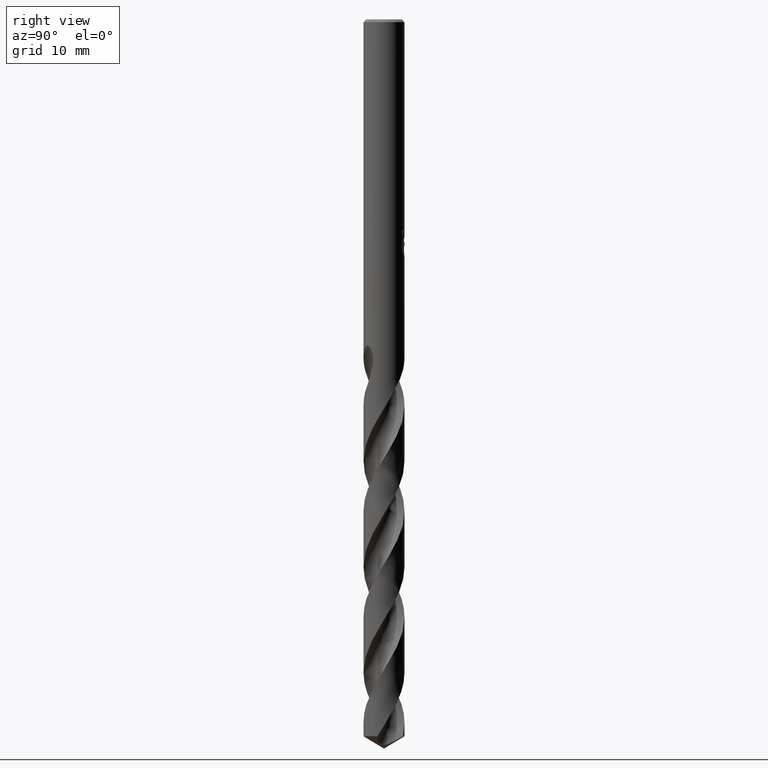
[diagram: clean part render]
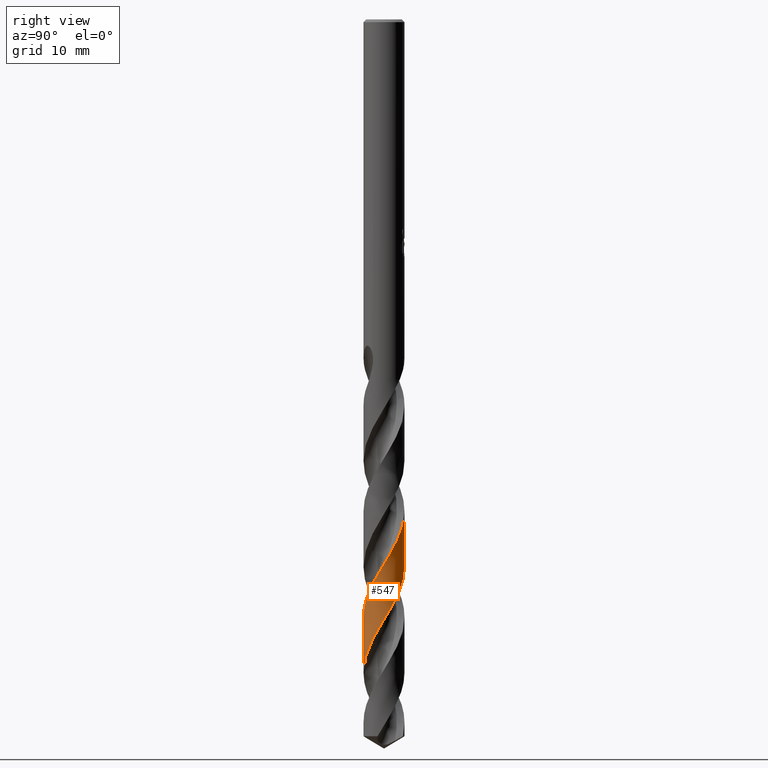
[diagram: same view with one face highlighted and labeled with its STEP entity id]
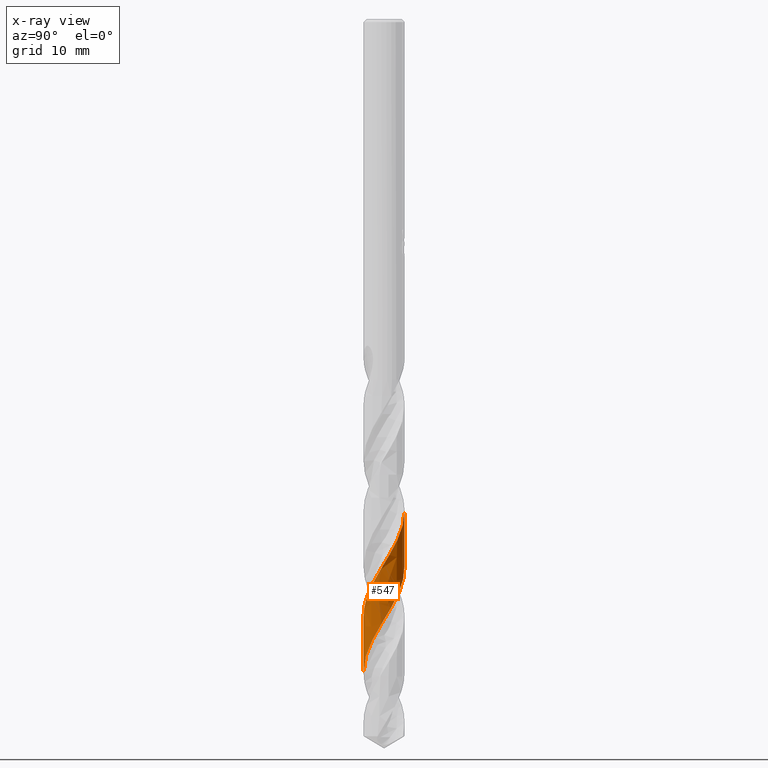
[diagram: x-ray of the same camera — body ghosted, the highlighted face saturated]
A machine part, right view. The second image highlights one B-rep face of the part: STEP entity #547.
The next image is the same camera in x-ray: the body ghosted, the highlighted face saturated — about 0% of this face is hidden behind the body in this view.
In plain terms, the highlighted conical surface has half-angle 0 deg.
Its self-contained STEP definition (entity closure, byte-faithful):
#345=EDGE_CURVE('',#615,#449,#851,.T.);
#449=VERTEX_POINT('',#968);
#457=VERTEX_POINT('',#977);
#543=EDGE_CURVE('',#615,#635,#1071,.T.);
#547=ADVANCED_FACE('',(#1075),#1076,.T.);
#583=EDGE_CURVE('',#457,#635,#1113,.T.);
#615=VERTEX_POINT('',#1146);
#635=VERTEX_POINT('',#1167);
#693=EDGE_CURVE('',#457,#449,#1229,.T.);
#851=LINE('',#1820,#1821);
#968=CARTESIAN_POINT('',(-2.2057457314449E-013,-2.24996653400407,-65.5467742340443));
#977=CARTESIAN_POINT('',(-2.9447654216318E-014,2.24993690590323,-53.9479464730402));
#1071=B_SPLINE_CURVE_WITH_KNOTS('',3,(#6180,#6181,#6182,#6183,#6184,#6185,#6186,#6187,#6188,#6189,#6190,#6191,#6192,#6193,#6194,#6195,#6196,#6197,#6198,#6199,#6200,#6201,#6202,#6203,#6204,#6205,#6206,#6207,#6208,#6209,#6210,#6211,#6212,#6213,#6214,#6215,#6216,#6217,#6218,#6219,#6220,#6221,#6222,#6223,#6224,#6225,#6226,#6227,#6228,#6229,#6230,#6231,#6232,#6233,#6234,#6235,#6236,#6237,#6238,#6239,#6240,#6241,#6242,#6243,#6244,#6245,#6246,#6247,#6248,#6249,#6250,#6251,#6252,#6253,#6254,#6255,#6256,#6257,#6258,#6259,#6260,#6261,#6262,#6263,#6264,#6265,#6266,#6267,#6268,#6269,#6270,#6271,#6272,#6273,#6274,#6275,#6276,#6277,#6278,#6279,#6280,#6281,#6282,#6283,#6284,#6285,#6286,#6287,#6288,#6289,#6290,#6291,#6292,#6293,#6294,#6295,#6296,#6297,#6298,#6299,#6300,#6301,#6302,#6303,#6304,#6305,#6306,#6307,#6308,#6309,#6310,#6311,#6312,#6313,#6314,#6315,#6316,#6317,#6318,#6319,#6320,#6321,#6322,#6323),.UNSPECIFIED.,.F.,.F.,(4,2,2,2,2,2,2,2,2,2,2,2,2,2,2,2,2,2,2,2,2,2,2,2,2,2,2,2,2,2,2,2,2,2,2,2,2,2,2,2,2,2,2,2,2,2,2,2,2,2,2,2,2,2,2,2,2,2,2,2,2,2,2,2,2,2,2,2,2,2,2,4),(0.0,0.702120681021277,1.07274663009122,1.80338763470696,2.60304496838478,3.28402904207326,4.08200615313659,4.77401504416212,5.50854097753346,6.23454204389761,6.96847339897338,7.69617758368244,8.42969971275998,9.15903457190725,9.89223045695538,10.6230376962887,11.3559151084156,12.0882724824586,12.820956864158,13.5547987661257,14.2874088135748,15.0226374517875,15.7552240804212,16.4917979793885,17.2243626389819,17.9623718526773,18.6699265110403,19.4104021495991,20.0624604085578,20.434632020391,21.1031794175738,21.841025969625,22.5702179285365,23.3074546769585,24.038473608882,24.7752740594691,25.5079513731988,26.3083518426672,27.0347456765723,27.8362544568986,28.5556564429973,29.2938008727282,30.0226230927258,30.7602089794187,31.4908320360858,32.2279706915762,32.944147603191,33.7444321630175,34.4410511543111,35.1776950787822,35.9123330306739,36.6487130494387,37.3848857416136,38.1212135879854,38.8587665530458,39.5947558382061,40.3334773225328,40.9775383264977,41.2755354404517,41.795759390669,42.4960170008308,43.2544659381512,43.5460203686117,44.5763193441655,44.9618871318318,45.4959655954231,45.6304983131512,45.7487395348211,45.8959323782895,46.1857774355871,46.5643830689777,47.4653220340241),.UNSPECIFIED.);
#1075=FACE_OUTER_BOUND('',#6327,.T.);
#1076=CONICAL_SURFACE('',#6328,2.24995,2.55440475941274E-006);
#1113=LINE('',#6604,#6605);
#1146=CARTESIAN_POINT('',(1.12399953532747E-014,-2.24998214770868,-71.6592372482266));
#1167=CARTESIAN_POINT('',(3.19290175156959E-015,2.24995252058692,-60.0607927745969));
#1229=B_SPLINE_CURVE_WITH_KNOTS('',3,(#7267,#7268,#7269,#7270,#7271,#7272,#7273,#7274,#7275,#7276,#7277,#7278,#7279,#7280,#7281,#7282,#7283,#7284,#7285,#7286,#7287,#7288,#7289,#7290,#7291,#7292,#7293,#7294,#7295,#7296,#7297,#7298,#7299,#7300,#7301,#7302,#7303,#7304,#7305,#7306,#7307,#7308,#7309,#7310,#7311,#7312,#7313,#7314,#7315,#7316,#7317,#7318,#7319,#7320,#7321,#7322,#7323,#7324,#7325,#7326,#7327,#7328,#7329,#7330,#7331,#7332,#7333,#7334,#7335,#7336,#7337,#7338,#7339,#7340,#7341,#7342,#7343,#7344,#7345,#7346,#7347,#7348,#7349,#7350,#7351,#7352,#7353,#7354,#7355,#7356,#7357,#7358,#7359,#7360,#7361,#7362,#7363,#7364,#7365,#7366,#7367,#7368,#7369,#7370,#7371,#7372,#7373,#7374,#7375,#7376,#7377,#7378,#7379,#7380,#7381,#7382,#7383,#7384,#7385,#7386,#7387,#7388,#7389,#7390,#7391,#7392,#7393,#7394,#7395,#7396,#7397,#7398,#7399,#7400,#7401,#7402,#7403,#7404,#7405,#7406,#7407,#7408,#7409,#7410,#7411,#7412,#7413,#7414,#7415,#7416,#7417,#7418,#7419,#7420,#7421,#7422,#7423,#7424,#7425,#7426,#7427,#7428,#7429,#7430,#7431,#7432,#7433,#7434,#7435,#7436,#7437,#7438,#7439,#7440,#7441,#7442,#7443,#7444,#7445,#7446,#7447,#7448,#7449,#7450),.UNSPECIFIED.,.F.,.F.,(4,2,2,2,2,2,2,2,2,2,2,2,2,2,2,2,2,2,2,2,2,2,2,2,2,2,2,2,2,2,2,2,2,2,2,2,2,2,2,2,2,2,2,2,2,2,2,2,2,2,2,2,2,2,2,2,2,2,2,2,2,2,2,2,2,2,2,2,2,2,2,2,2,2,2,2,2,2,2,2,2,2,2,2,2,2,2,2,2,2,2,4),(0.0,0.113528017460406,0.182438753364415,0.191622564231511,0.196536742408639,0.199201706864922,0.201555537278635,0.203670515177977,0.20558770378618,0.207339031908972,0.208949760172241,0.21044017537809,0.211826786946294,0.213123191282054,0.214340703856623,0.487283480446852,0.551391172882907,0.586436027047644,0.615827404868498,0.650628006318163,0.713643657035673,0.800831644275865,1.1523904375513,1.38130031380908,1.81812081185199,2.7110090045117,3.07568607067651,4.17702550485879,4.60158470303633,5.54816450617054,5.98303817381051,6.72648809587862,7.50853843124404,8.40126048299548,8.87427751077797,9.56273513466763,9.95627646518073,10.3420030845976,11.0629852147044,11.8441502774595,12.7399651878436,13.2051009840837,13.8914977375756,14.2849812892296,14.6731421455716,15.3945071397386,16.1754132122103,17.075273318402,17.534336794694,18.2181364279377,18.6115592570982,19.0021199676672,19.7208395783507,20.5019356059404,21.3965248198796,21.8628064305814,22.5476886395101,22.9409527167423,23.3299532136154,24.0451697308872,24.8264899824703,25.7124499226587,26.1907871891486,26.8763081672405,27.2694397976215,27.6576756201549,28.3752416365909,29.1558975664194,30.043921419808,30.5181872278421,31.2035303482447,31.5965495535041,31.9846171514262,32.7046870302506,33.484721663296,34.381092694776,34.8428327176749,35.5259617804625,35.9189114051995,36.3089077852231,37.0274473426201,37.8075046738142,38.7014142492034,39.1659310146029,39.8504547875752,40.1493883899726,40.6090807948256,41.3623313471776,42.1803806557996,42.7924906430538,43.7173942660926,44.6416774771327),.UNSPECIFIED.);
#1820=CARTESIAN_POINT('',(2.75526277217447E-016,-2.24995,-59.074031803594));
#1821=VECTOR('',#8106,1.0);
#6180=CARTESIAN_POINT('',(-2.13435979439722,0.712045130634748,-78.648063607188));
#6181=CARTESIAN_POINT('',(-2.17271062859822,0.597086645796059,-78.4478422593322));
#6182=CARTESIAN_POINT('',(-2.20181655529884,0.478909642896238,-78.2487357693072));
#6183=CARTESIAN_POINT('',(-2.23149380420802,0.295070491786576,-77.9435538195333));
#6184=CARTESIAN_POINT('',(-2.23901528478628,0.231162084316197,-77.838262165326));
#6185=CARTESIAN_POINT('',(-2.25319887063648,0.0406261575153213,-77.5249070278641));
#6186=CARTESIAN_POINT('',(-2.25191531909676,-0.086340657561007,-77.3163479627904));
#6187=CARTESIAN_POINT('',(-2.22680532991229,-0.350847741658506,-76.8809401806748));
#6188=CARTESIAN_POINT('',(-2.20092639812897,-0.487464924990646,-76.6547613553453));
#6189=CARTESIAN_POINT('',(-2.13010393970114,-0.734213518765896,-76.2333186592188));
#6190=CARTESIAN_POINT('',(-2.08865036134144,-0.844976948812925,-76.0386529608023));
#6191=CARTESIAN_POINT('',(-1.98000306874429,-1.07761040247704,-75.6176099758222));
#6192=CARTESIAN_POINT('',(-1.90993310033129,-1.19740528154598,-75.3918426831561));
#6193=CARTESIAN_POINT('',(-1.7594524942498,-1.40754918874282,-74.9676105534453));
#6194=CARTESIAN_POINT('',(-1.68186410191084,-1.49941070602661,-74.7697702190495));
#6195=CARTESIAN_POINT('',(-1.50736696190419,-1.67528173355542,-74.3635489515659));
#6196=CARTESIAN_POINT('',(-1.41000373798577,-1.75800934138317,-74.1554954866969));
#6197=CARTESIAN_POINT('',(-1.20355892247196,-1.90519639728094,-73.7395846924345));
#6198=CARTESIAN_POINT('',(-1.09504458997976,-1.96957151004027,-73.5319966067608));
#6199=CARTESIAN_POINT('',(-0.866927448663044,-2.08017204056303,-73.1162475782124));
#6200=CARTESIAN_POINT('',(-0.747746028447997,-2.12592292945814,-72.9083615985969));
#6201=CARTESIAN_POINT('',(-0.503965446432093,-2.19645443468744,-72.4921698896535));
#6202=CARTESIAN_POINT('',(-0.379965555769005,-2.22126377653175,-72.2841159667667));
#6203=CARTESIAN_POINT('',(-0.127918983333547,-2.24994994470175,-71.8680379984815));
#6204=CARTESIAN_POINT('',(-0.000398393961568128,-2.25358377574653,-71.6602896566709));
#6205=CARTESIAN_POINT('',(0.253189139650167,-2.23927350017068,-71.243833016311));
#6206=CARTESIAN_POINT('',(0.378660871875223,-2.22149669735423,-71.0353461260022));
#6207=CARTESIAN_POINT('',(0.626065458709788,-2.16486464796892,-70.6189798913639));
#6208=CARTESIAN_POINT('',(0.747478690634122,-2.12600147959507,-70.4113687745722));
#6209=CARTESIAN_POINT('',(0.982101002287073,-2.02829340202483,-69.9947092680201));
#6210=CARTESIAN_POINT('',(1.09475435921651,-1.96976617069505,-69.7858588543095));
#6211=CARTESIAN_POINT('',(1.30937203148865,-1.83414752100473,-69.3692864914352));
#6212=CARTESIAN_POINT('',(1.41091262676295,-1.75724104106406,-69.161829442149));
#6213=CARTESIAN_POINT('',(1.59990774412788,-1.58708474322601,-68.7449856251415));
#6214=CARTESIAN_POINT('',(1.68688532687388,-1.49429563233024,-68.5357829197184));
#6215=CARTESIAN_POINT('',(1.84430963742927,-1.29500313128231,-68.1189891212932));
#6216=CARTESIAN_POINT('',(1.91448839264255,-1.18881085273019,-67.9116700834649));
#6217=CARTESIAN_POINT('',(2.03630791303403,-0.965418790544822,-67.4946630100714));
#6218=CARTESIAN_POINT('',(2.08759593173016,-0.84880795096505,-67.2851519068469));
#6219=CARTESIAN_POINT('',(2.16985425738663,-0.60844490670405,-66.8681607001683));
#6220=CARTESIAN_POINT('',(2.20073518520968,-0.485046331689476,-66.6609651591551));
#6221=CARTESIAN_POINT('',(2.24142259185806,-0.233753880882469,-66.2438232846686));
#6222=CARTESIAN_POINT('',(2.25104463119536,-0.106545228294813,-66.0340517111265));
#6223=CARTESIAN_POINT('',(2.24870318603001,0.147535736074295,-65.6169136031321));
#6224=CARTESIAN_POINT('',(2.23681569810947,0.274093708819379,-65.4098459077986));
#6225=CARTESIAN_POINT('',(2.19164884780061,0.524707876001582,-64.9926024998328));
#6226=CARTESIAN_POINT('',(2.15838472658802,0.648031991750869,-64.7826034366051));
#6227=CARTESIAN_POINT('',(2.07167559835062,0.886876154487342,-64.3653702522208));
#6228=CARTESIAN_POINT('',(2.01842854197389,1.00218838138316,-64.1584494740488));
#6229=CARTESIAN_POINT('',(1.89247765367886,1.22360087359562,-63.7411231830724));
#6230=CARTESIAN_POINT('',(1.81999968226538,1.3289805045394,-63.5309042409072));
#6231=CARTESIAN_POINT('',(1.66151860590243,1.52204625788609,-63.1206886654241));
#6232=CARTESIAN_POINT('',(1.57631040282655,1.61014492351405,-62.9209200947215));
#6233=CARTESIAN_POINT('',(1.38792487608751,1.77550259699357,-62.5103568879049));
#6234=CARTESIAN_POINT('',(1.28466073911726,1.85156213113871,-62.2997124297806));
#6235=CARTESIAN_POINT('',(1.07980407801645,1.97711624550727,-61.9049411875486));
#6236=CARTESIAN_POINT('',(0.979496147664103,2.02869717903597,-61.7208942009025));
#6237=CARTESIAN_POINT('',(0.816309018802666,2.09763803879937,-61.430840472159));
#6238=CARTESIAN_POINT('',(0.756025236583418,2.12010691572805,-61.3255551502634));
#6239=CARTESIAN_POINT('',(0.585174544221019,2.17558823523492,-61.0306064066594));
#6240=CARTESIAN_POINT('',(0.472787003407375,2.20275459748035,-60.8403485272733));
#6241=CARTESIAN_POINT('',(0.232743754785717,2.24151609127974,-60.4416629860171));
#6242=CARTESIAN_POINT('',(0.105340338306851,2.25109990949599,-60.2336114218722));
#6243=CARTESIAN_POINT('',(-0.14817372796478,2.24860133639652,-59.8177246145395));
#6244=CARTESIAN_POINT('',(-0.273773335491415,2.23678738948327,-59.6101601292424));
#6245=CARTESIAN_POINT('',(-0.52326877752256,2.19196423000601,-59.1944384166679));
#6246=CARTESIAN_POINT('',(-0.646545470791357,2.15881679396818,-58.9865547046127));
#6247=CARTESIAN_POINT('',(-0.885145059906551,2.07237827280492,-58.5703578617935));
#6248=CARTESIAN_POINT('',(-0.999999481080918,2.01946224132729,-58.3622950797145));
#6249=CARTESIAN_POINT('',(-1.22065147838891,1.89432978621778,-57.9462192226508));
#6250=CARTESIAN_POINT('',(-1.32588247536217,1.82222761102995,-57.7384812937048));
#6251=CARTESIAN_POINT('',(-1.52248486867655,1.66142464070998,-57.3220234267058));
#6252=CARTESIAN_POINT('',(-1.61347118313126,1.57320810638233,-57.1135243733183));
#6253=CARTESIAN_POINT('',(-1.78741989191322,1.37349796179347,-56.6790393942621));
#6254=CARTESIAN_POINT('',(-1.8684228161555,1.26109366391751,-56.4536275980697));
#6255=CARTESIAN_POINT('',(-2.00228308927135,1.03385051945181,-56.020994301539));
#6256=CARTESIAN_POINT('',(-2.05678061597598,0.920675700529555,-55.8143225736173));
#6257=CARTESIAN_POINT('',(-2.15105184381997,0.674082782366186,-55.3813670169602));
#6258=CARTESIAN_POINT('',(-2.18844238861629,0.540467049635112,-55.1556408901845));
#6259=CARTESIAN_POINT('',(-2.23563536960615,0.28211847222798,-54.724639640122));
#6260=CARTESIAN_POINT('',(-2.24780579593816,0.15828654053309,-54.5199305312201));
#6261=CARTESIAN_POINT('',(-2.2516064300786,-0.0936240294488961,-54.1068501619269));
#6262=CARTESIAN_POINT('',(-2.24267477851613,-0.221105405363797,-53.8987462364778));
#6263=CARTESIAN_POINT('',(-2.20357557025293,-0.471507712992128,-53.4829733475429));
#6264=CARTESIAN_POINT('',(-2.17376211775793,-0.593998694353866,-53.2755614153114));
#6265=CARTESIAN_POINT('',(-2.09339092755824,-0.834367867354962,-52.8599363042531));
#6266=CARTESIAN_POINT('',(-2.04276990680807,-0.951596979236569,-52.6519975469926));
#6267=CARTESIAN_POINT('',(-1.92280234866902,-1.17514543708405,-52.2358883126551));
#6268=CARTESIAN_POINT('',(-1.85390717512902,-1.28107824215044,-52.0279811665926));
#6269=CARTESIAN_POINT('',(-1.69825785115445,-1.48132856654171,-51.6119950020648));
#6270=CARTESIAN_POINT('',(-1.61169163426833,-1.57507560369701,-51.4041969553388));
#6271=CARTESIAN_POINT('',(-1.42628653665004,-1.74447853093345,-50.9923748335573));
#6272=CARTESIAN_POINT('',(-1.32829429003803,-1.82019602172326,-50.7886016862918));
#6273=CARTESIAN_POINT('',(-1.10857271229722,-1.96273926832943,-50.358886256084));
#6274=CARTESIAN_POINT('',(-0.985939390824722,-2.02711659323071,-50.1335410337922));
#6275=CARTESIAN_POINT('',(-0.746940854318632,-2.1257289179159,-49.7094585952203));
#6276=CARTESIAN_POINT('',(-0.632328529709323,-2.16259013160117,-49.5113029463225));
#6277=CARTESIAN_POINT('',(-0.391407973410714,-2.2192659068354,-49.1052483650218));
#6278=CARTESIAN_POINT('',(-0.265317177674722,-2.23784715347634,-48.8976735427168));
#6279=CARTESIAN_POINT('',(-0.0116246813066153,-2.25346956537466,-48.4809838131348));
#6280=CARTESIAN_POINT('',(0.115334548012754,-2.25053918012005,-48.272064652228));
#6281=CARTESIAN_POINT('',(0.367766164191148,-2.22329671003538,-47.8554459854239));
#6282=CARTESIAN_POINT('',(0.492783726941614,-2.19897342127406,-47.6480139854614));
#6283=CARTESIAN_POINT('',(0.737429398755259,-2.12943745895583,-47.2311377346605));
#6284=CARTESIAN_POINT('',(0.856419348530864,-2.08442040506636,-47.0218799378508));
#6285=CARTESIAN_POINT('',(1.08555159960501,-1.97480182718253,-46.605011950336));
#6286=CARTESIAN_POINT('',(1.19532506468813,-1.91036340902812,-46.3976768335243));
#6287=CARTESIAN_POINT('',(1.40308316491172,-1.76343330649609,-45.9806263333866));
#6288=CARTESIAN_POINT('',(1.50049167899625,-1.68131294589452,-45.7710778261652));
#6289=CARTESIAN_POINT('',(1.68017049529191,-1.50174642965776,-45.3541215929563));
#6290=CARTESIAN_POINT('',(1.76221165598175,-1.40458501255523,-45.1470029107605));
#6291=CARTESIAN_POINT('',(1.90937510071004,-1.1969339663782,-44.7299674259028));
#6292=CARTESIAN_POINT('',(1.97401833246517,-1.08698819268343,-44.5202430859795));
#6293=CARTESIAN_POINT('',(2.07692188991868,-0.872238931841132,-44.1291964072743));
#6294=CARTESIAN_POINT('',(2.11743132146128,-0.768721771883901,-43.947795729565));
#6295=CARTESIAN_POINT('',(2.16529135589879,-0.613396054757867,-43.6816009204317));
#6296=CARTESIAN_POINT('',(2.17873035643442,-0.563796246731488,-43.5974464901586));
#6297=CARTESIAN_POINT('',(2.21091823086732,-0.426574293025015,-43.3661099296122));
#6298=CARTESIAN_POINT('',(2.22614196989529,-0.338259129651485,-43.2185342829461));
#6299=CARTESIAN_POINT('',(2.24943063773501,-0.129261095447972,-42.8734545280575));
#6300=CARTESIAN_POINT('',(2.25313117570096,-0.00842098271250032,-42.6765379294568));
#6301=CARTESIAN_POINT('',(2.24058530404616,0.242834136103357,-42.2643203460375));
#6302=CARTESIAN_POINT('',(2.22266808020727,0.37246175887967,-42.0486193816645));
#6303=CARTESIAN_POINT('',(2.18273120882726,0.547957990497729,-41.7524872197624));
#6304=CARTESIAN_POINT('',(2.1699948237718,0.596422423087943,-41.6703501243924));
#6305=CARTESIAN_POINT('',(2.10476408354637,0.814577633412873,-41.298230837221));
#6306=CARTESIAN_POINT('',(2.03514139553577,0.974187080141793,-41.0197294999639));
#6307=CARTESIAN_POINT('',(1.91897061578003,1.17628418444075,-40.6349465552418));
#6308=CARTESIAN_POINT('',(1.88552161848714,1.22908611123988,-40.5300750749876));
#6309=CARTESIAN_POINT('',(1.80208579267334,1.34974198516969,-40.2772555104342));
#6310=CARTESIAN_POINT('',(1.76465844020216,1.39612073664051,-40.1679618408801));
#6311=CARTESIAN_POINT('',(1.73823977979578,1.4285132288179,-40.0940737778944));
#6312=CARTESIAN_POINT('',(1.73281389714623,1.43509144076389,-40.0792773413718));
#6313=CARTESIAN_POINT('',(1.72240244211133,1.44756483129052,-40.0516000829713));
#6314=CARTESIAN_POINT('',(1.71744497502125,1.45344402222822,-40.0387092174586));
#6315=CARTESIAN_POINT('',(1.70611301515847,1.46674064056531,-40.00988995919));
#6316=CARTESIAN_POINT('',(1.69969164091072,1.47417888241801,-39.9939979480235));
#6317=CARTESIAN_POINT('',(1.68020043851546,1.49645144340101,-39.9470618032342));
#6318=CARTESIAN_POINT('',(1.66673642139678,1.51144721926407,-39.9163023987637));
#6319=CARTESIAN_POINT('',(1.63435440443745,1.54650259771604,-39.8461247882086));
#6320=CARTESIAN_POINT('',(1.61507643764334,1.56665537488797,-39.8070426487802));
#6321=CARTESIAN_POINT('',(1.54650240947543,1.6355634254914,-39.6768985173223));
#6322=CARTESIAN_POINT('',(1.49303389441334,1.68488195948245,-39.5895531721765));
#6323=CARTESIAN_POINT('',(1.43370499056795,1.73393773460644,-39.505));
#6327=EDGE_LOOP('',(#8370,#8371,#8372,#8373));
#6328=AXIS2_PLACEMENT_3D('',#8374,#8375,#8376);
#6604=CARTESIAN_POINT('',(-2.75534335939084E-016,2.24995,-59.074031803594));
#6605=VECTOR('',#8387,1.0);
#7267=CARTESIAN_POINT('',(1.56385330917524,-1.6175329656156,-39.505));
#7268=CARTESIAN_POINT('',(1.5503970481384,-1.63054278230679,-39.5378898399132));
#7269=CARTESIAN_POINT('',(1.53672818517695,-1.64343388963044,-39.5708297111496));
#7270=CARTESIAN_POINT('',(1.51435674048831,-1.66400326438699,-39.6237126920927));
#7271=CARTESIAN_POINT('',(1.50582685652638,-1.6717269546763,-39.6436461860297));
#7272=CARTESIAN_POINT('',(1.49603930161219,-1.68045253026119,-39.6662307811379));
#7273=CARTESIAN_POINT('',(1.49488661829445,-1.68147802033185,-39.6688861258655));
#7274=CARTESIAN_POINT('',(1.49311445403358,-1.68305136807855,-39.6729616237211));
#7275=CARTESIAN_POINT('',(1.49249623612319,-1.68359962068541,-39.6743820732725));
#7276=CARTESIAN_POINT('',(1.49154198624203,-1.68444493640608,-39.6765726172993));
#7277=CARTESIAN_POINT('',(1.4912063095689,-1.68474211433039,-39.6773428062595));
#7278=CARTESIAN_POINT('',(1.49057386971685,-1.68530168245255,-39.6787931838171));
#7279=CARTESIAN_POINT('',(1.49027713989246,-1.68556408249207,-39.6794733794559));
#7280=CARTESIAN_POINT('',(1.48971357264977,-1.68606218329646,-39.6807646842825));
#7281=CARTESIAN_POINT('',(1.4894467580485,-1.68629789079861,-39.6813757983888));
#7282=CARTESIAN_POINT('',(1.4889379039593,-1.68674720409231,-39.6825408236517));
#7283=CARTESIAN_POINT('',(1.48869588163643,-1.68696081483159,-39.6830947383113));
#7284=CARTESIAN_POINT('',(1.48823262877782,-1.68736950794652,-39.6841546035287));
#7285=CARTESIAN_POINT('',(1.48801141121194,-1.68756459422001,-39.6846605571127));
#7286=CARTESIAN_POINT('',(1.48758661334866,-1.6879390643921,-39.6856318086303));
#7287=CARTESIAN_POINT('',(1.48738304328774,-1.68811845118589,-39.6860971085939));
#7288=CARTESIAN_POINT('',(1.48699100476871,-1.68846379118365,-39.6869929216704));
#7289=CARTESIAN_POINT('',(1.48680254433047,-1.68862974673159,-39.6874234365547));
#7290=CARTESIAN_POINT('',(1.48643865985359,-1.68895006999599,-39.68825445501));
#7291=CARTESIAN_POINT('',(1.48626324215804,-1.68910443966032,-39.6886549601969));
#7292=CARTESIAN_POINT('',(1.48592374108727,-1.68940311079873,-39.6894298917893));
#7293=CARTESIAN_POINT('',(1.48575966293531,-1.68954741378204,-39.6898043193334));
#7294=CARTESIAN_POINT('',(1.48544142342223,-1.68982721593507,-39.6905303681776));
#7295=CARTESIAN_POINT('',(1.48528726639198,-1.68996271629952,-39.6908819903085));
#7296=CARTESIAN_POINT('',(1.45056710667254,-1.72047248935684,-39.7700583650363));
#7297=CARTESIAN_POINT('',(1.4153131241976,-1.74962932403451,-39.8463646752706));
#7298=CARTESIAN_POINT('',(1.36890145286255,-1.78557794048998,-39.9420757284251));
#7299=CARTESIAN_POINT('',(1.36000072700195,-1.79236704033454,-39.9602350081832));
#7300=CARTESIAN_POINT('',(1.3461023808626,-1.80280385541481,-39.9883174450708));
#7301=CARTESIAN_POINT('',(1.34116873236645,-1.8064772690177,-39.9982339774085));
#7302=CARTESIAN_POINT('',(1.33205516221206,-1.81320481145785,-40.0164630930154));
#7303=CARTESIAN_POINT('',(1.32788384369708,-1.81626191481278,-40.0247727591527));
#7304=CARTESIAN_POINT('',(1.31874062300008,-1.82291442399025,-40.0429183386439));
#7305=CARTESIAN_POINT('',(1.313764997302,-1.82650365698531,-40.0527490568899));
#7306=CARTESIAN_POINT('',(1.29972464906088,-1.83654462934524,-40.0803787851298));
#7307=CARTESIAN_POINT('',(1.29062532429671,-1.84295067494073,-40.098156207644));
#7308=CARTESIAN_POINT('',(1.26880600889117,-1.85807053782949,-40.1405470380901));
#7309=CARTESIAN_POINT('',(1.25619804619373,-1.86662062643355,-40.1648857710026));
#7310=CARTESIAN_POINT('',(1.19008571682157,-1.91044351277176,-40.2922642332554));
#7311=CARTESIAN_POINT('',(1.13598830676874,-1.94306986909211,-40.3951132569567));
#7312=CARTESIAN_POINT('',(1.04521423106528,-1.99280091951243,-40.5646421272873));
#7313=CARTESIAN_POINT('',(1.00893951266621,-2.01140764632759,-40.6316238696884));
#7314=CARTESIAN_POINT('',(0.902190276778757,-2.06255922994999,-40.8262957633626));
#7315=CARTESIAN_POINT('',(0.830435947303583,-2.09248173639619,-40.9540967925599));
#7316=CARTESIAN_POINT('',(0.60771877975256,-2.1720894604017,-41.3429266466163));
#7317=CARTESIAN_POINT('',(0.45284121115987,-2.20959695337448,-41.6021863700075));
#7318=CARTESIAN_POINT('',(0.230710919540276,-2.23898923228049,-41.9695277927869));
#7319=CARTESIAN_POINT('',(0.166012009368767,-2.24471115307034,-42.0760409579675));
#7320=CARTESIAN_POINT('',(-0.094516725698895,-2.25644313410496,-42.504507467452));
#7321=CARTESIAN_POINT('',(-0.29073476487951,-2.23965937734036,-42.8254229953383));
#7322=CARTESIAN_POINT('',(-0.556309238528833,-2.18136117185709,-43.2711823051515));
#7323=CARTESIAN_POINT('',(-0.629308824419347,-2.16143045867221,-43.3950481964808));
#7324=CARTESIAN_POINT('',(-0.861327341847977,-2.08533706054375,-43.795736286093));
#7325=CARTESIAN_POINT('',(-1.01513447184223,-2.0149553561241,-44.0716581816385));
#7326=CARTESIAN_POINT('',(-1.2260448526203,-1.88810062100017,-44.475318546462));
#7327=CARTESIAN_POINT('',(-1.29030484597677,-1.84478096142814,-44.6022371960533));
#7328=CARTESIAN_POINT('',(-1.45798118106234,-1.71869834998052,-44.9466598303753));
#7329=CARTESIAN_POINT('',(-1.55657934278272,-1.62994316505966,-45.1637437222689));
#7330=CARTESIAN_POINT('',(-1.7417370251641,-1.43104149858385,-45.6095916496253));
#7331=CARTESIAN_POINT('',(-1.82695874941443,-1.32050584582177,-45.8373299768346));
#7332=CARTESIAN_POINT('',(-1.98638543765065,-1.06848915515937,-46.3269065543102));
#7333=CARTESIAN_POINT('',(-2.05692631477457,-0.92546889552971,-46.5872818486249));
#7334=CARTESIAN_POINT('',(-2.1408834473912,-0.697035943173624,-46.9864245236589));
#7335=CARTESIAN_POINT('',(-2.16548251255545,-0.616376425240639,-47.1244528841706));
#7336=CARTESIAN_POINT('',(-2.21462858773798,-0.415445909559788,-47.4640023104193));
#7337=CARTESIAN_POINT('',(-2.23398068908008,-0.294139334416599,-47.665107719482));
#7338=CARTESIAN_POINT('',(-2.24870450687315,-0.101937348800821,-47.9814032997064));
#7339=CARTESIAN_POINT('',(-2.25079035319135,-0.0318036108997222,-48.0963515805248));
#7340=CARTESIAN_POINT('',(-2.24842489974545,0.107066896671128,-48.324113538776));
#7341=CARTESIAN_POINT('',(-2.24410482378041,0.175687825314579,-48.4367497404572));
#7342=CARTESIAN_POINT('',(-2.22273013109813,0.371641531426045,-48.7603285373179));
#7343=CARTESIAN_POINT('',(-2.19789776357127,0.497905360777315,-48.9709123539256));
#7344=CARTESIAN_POINT('',(-2.1239736277119,0.755166172997556,-49.4100610421548));
#7345=CARTESIAN_POINT('',(-2.07321020468015,0.885055646922275,-49.6376292084415));
#7346=CARTESIAN_POINT('',(-1.93921137395946,1.15199306806451,-50.1280031200599));
#7347=CARTESIAN_POINT('',(-1.85263418074883,1.28663140755332,-50.389346031425));
#7348=CARTESIAN_POINT('',(-1.7004948139103,1.47559195280697,-50.7872046155648));
#7349=CARTESIAN_POINT('',(-1.64498687158617,1.53722672276626,-50.9229768002709));
#7350=CARTESIAN_POINT('',(-1.49949788950644,1.6818573602098,-51.2597184770315));
#7351=CARTESIAN_POINT('',(-1.40587507013562,1.76087061724841,-51.4602843194679));
#7352=CARTESIAN_POINT('',(-1.24918840211553,1.87260154498228,-51.7760555731345));
#7353=CARTESIAN_POINT('',(-1.19021144080202,1.91063090497506,-51.8910219080589));
#7354=CARTESIAN_POINT('',(-1.06969090345341,1.98059220575876,-52.119547093619));
#7355=CARTESIAN_POINT('',(-1.00829459179642,2.01254090617961,-52.2329264734794));
#7356=CARTESIAN_POINT('',(-0.828922436877715,2.09561569537891,-52.557426063613));
#7357=CARTESIAN_POINT('',(-0.707858191821135,2.13954952756414,-52.7681840894609));
#7358=CARTESIAN_POINT('',(-0.449252435671445,2.20901665094335,-53.2074996996425));
#7359=CARTESIAN_POINT('',(-0.311802107865292,2.23256493276504,-53.4350614766145));
#7360=CARTESIAN_POINT('',(-0.0132408941401315,2.25560264841413,-53.9266869352497));
#7361=CARTESIAN_POINT('',(0.147537123743707,2.25082143999415,-54.1892756427219));
#7362=CARTESIAN_POINT('',(0.387588127241719,2.21781406034148,-54.5866569358385));
#7363=CARTESIAN_POINT('',(0.467982068485819,2.2022511720142,-54.7206999472791));
#7364=CARTESIAN_POINT('',(0.665528476310388,2.15270753264554,-55.0550048113541));
#7365=CARTESIAN_POINT('',(0.781143169918536,2.11350531729083,-55.2548740181001));
#7366=CARTESIAN_POINT('',(0.957396240800553,2.03728879399842,-55.5699623226504));
#7367=CARTESIAN_POINT('',(1.02044420696007,2.00645268453746,-55.6849455255594));
#7368=CARTESIAN_POINT('',(1.1430308412726,1.93921904953446,-55.9142228085567));
#7369=CARTESIAN_POINT('',(1.20248726219734,1.9029212058391,-56.0283345950651));
#7370=CARTESIAN_POINT('',(1.36626280445783,1.79219865812301,-56.3528592023932));
#7371=CARTESIAN_POINT('',(1.46608288284449,1.71151058582552,-56.5629108379129));
#7372=CARTESIAN_POINT('',(1.65895239846673,1.52627767450908,-57.0016409850704));
#7373=CARTESIAN_POINT('',(1.75019679866587,1.42071904809278,-57.2293234461466));
#7374=CARTESIAN_POINT('',(1.92373201727173,1.17768096391954,-57.7196084563868));
#7375=CARTESIAN_POINT('',(2.00236380997095,1.03839368192834,-57.9807504156853));
#7376=CARTESIAN_POINT('',(2.09858513586818,0.815551489298089,-58.3788209962836));
#7377=CARTESIAN_POINT('',(2.12728357224885,0.737456449997423,-58.5150066191841));
#7378=CARTESIAN_POINT('',(2.18729461341061,0.541220841954481,-58.8518386385757));
#7379=CARTESIAN_POINT('',(2.21344253792355,0.421736370194106,-59.0520813337032));
#7380=CARTESIAN_POINT('',(2.23913774018026,0.231210142730894,-59.3675319558032));
#7381=CARTESIAN_POINT('',(2.24525812328758,0.161299209962625,-59.4825022062195));
#7382=CARTESIAN_POINT('',(2.25091535634842,0.0218637534055718,-59.7113438884881));
#7383=CARTESIAN_POINT('',(2.25051833521843,-0.0475384208611841,-59.8250337590259));
#7384=CARTESIAN_POINT('',(2.24030096345061,-0.244122270973483,-60.1481725967796));
#7385=CARTESIAN_POINT('',(2.22286948472765,-0.370691547468995,-60.3572667804425));
#7386=CARTESIAN_POINT('',(2.16413520048071,-0.631055907841071,-60.7951692949031));
#7387=CARTESIAN_POINT('',(2.12091825973857,-0.763808615778443,-61.0229808310472));
#7388=CARTESIAN_POINT('',(2.00312490758296,-1.03669597057816,-61.5109516586979));
#7389=CARTESIAN_POINT('',(1.92540922755869,-1.17477259303757,-61.7696733145873));
#7390=CARTESIAN_POINT('',(1.78438067337009,-1.37316402782843,-62.168867966684));
#7391=CARTESIAN_POINT('',(1.7310349161293,-1.43982823148762,-62.3086067536172));
#7392=CARTESIAN_POINT('',(1.59237542247259,-1.59423918876676,-62.6492548347009));
#7393=CARTESIAN_POINT('',(1.50341212066522,-1.67839862610062,-62.8497430588758));
#7394=CARTESIAN_POINT('',(1.35334515393475,-1.79880409098481,-63.1654354655797));
#7395=CARTESIAN_POINT('',(1.29661788959016,-1.84011598468978,-63.2804010310112));
#7396=CARTESIAN_POINT('',(1.18019225691862,-1.91683902300341,-63.5090480914347));
#7397=CARTESIAN_POINT('',(1.12063821539791,-1.95225263620509,-63.6225490885056));
#7398=CARTESIAN_POINT('',(0.946681223359082,-2.04511598204795,-63.9462469259685));
#7399=CARTESIAN_POINT('',(0.82883457997455,-2.09565151426688,-64.1560856710108));
#7400=CARTESIAN_POINT('',(0.575094282163422,-2.17967937291438,-64.5946085621617));
#7401=CARTESIAN_POINT('',(0.439139583841545,-2.21108040932579,-64.822295042635));
#7402=CARTESIAN_POINT('',(0.144254176557483,-2.25091396899663,-65.3108208232335));
#7403=CARTESIAN_POINT('',(-0.0145440840890123,-2.2554944464469,-65.5702158287361));
#7404=CARTESIAN_POINT('',(-0.256952822473661,-2.23684903996369,-65.9689409463765));
#7405=CARTESIAN_POINT('',(-0.340880983063283,-2.22560372497916,-66.1075347645231));
#7406=CARTESIAN_POINT('',(-0.54401057650509,-2.18663103490155,-66.447040890788));
#7407=CARTESIAN_POINT('',(-0.662008854931278,-2.15384747902304,-66.6475371228925));
#7408=CARTESIAN_POINT('',(-0.842583873986367,-2.08742315484033,-66.9632391172776));
#7409=CARTESIAN_POINT('',(-0.907242139873754,-2.06014568454569,-67.0782062344917));
#7410=CARTESIAN_POINT('',(-1.03302782097321,-2.00000536511732,-67.3068396029944));
#7411=CARTESIAN_POINT('',(-1.09408335466399,-1.96726823865641,-67.420325911203));
#7412=CARTESIAN_POINT('',(-1.26379662950258,-1.86592891544616,-67.7448042232026));
#7413=CARTESIAN_POINT('',(-1.36826406276627,-1.79073835723625,-67.9554342395028));
#7414=CARTESIAN_POINT('',(-1.57137246073238,-1.61633811521703,-68.39463740109));
#7415=CARTESIAN_POINT('',(-1.66831282827422,-1.51607289655905,-68.6222142080876));
#7416=CARTESIAN_POINT('',(-1.85537971939577,-1.2827789699543,-69.1131468729402));
#7417=CARTESIAN_POINT('',(-1.94186638260639,-1.14767418643175,-69.3750346119727));
#7418=CARTESIAN_POINT('',(-2.05010960484282,-0.930722079677179,-69.7726510630591));
#7419=CARTESIAN_POINT('',(-2.08281647848896,-0.855021703621802,-69.9076333538516));
#7420=CARTESIAN_POINT('',(-2.1534233769722,-0.66334517779526,-70.2429230901149));
#7421=CARTESIAN_POINT('',(-2.18619807232102,-0.545718409243752,-70.4428335214868));
#7422=CARTESIAN_POINT('',(-2.22256151315169,-0.357138770178529,-70.7579613508952));
#7423=CARTESIAN_POINT('',(-2.2326161392915,-0.287677806095607,-70.8729427392846));
#7424=CARTESIAN_POINT('',(-2.24615199638577,-0.148537785318426,-71.1021887077677));
#7425=CARTESIAN_POINT('',(-2.24967079247893,-0.0789829356115915,-71.2162711535507));
#7426=CARTESIAN_POINT('',(-2.25049764228723,0.118812369912273,-71.5409632618664));
#7427=CARTESIAN_POINT('',(-2.24007388099522,0.246865414132614,-71.7512108570685));
#7428=CARTESIAN_POINT('',(-2.19568370651722,0.510675476874168,-72.190104996928));
#7429=CARTESIAN_POINT('',(-2.15988674394178,0.645515611349762,-72.4177557341816));
#7430=CARTESIAN_POINT('',(-2.05685242163393,0.925868589472209,-72.9081199346549));
#7431=CARTESIAN_POINT('',(-1.98604274836275,1.06937081415907,-73.1693717256925));
#7432=CARTESIAN_POINT('',(-1.85620918120802,1.27428812518759,-73.5671985892176));
#7433=CARTESIAN_POINT('',(-1.80798763865546,1.34182601641777,-73.70302998836));
#7434=CARTESIAN_POINT('',(-1.67978951473993,1.50189209600549,-74.0396401953231));
#7435=CARTESIAN_POINT('',(-1.59576334646647,1.59088760921557,-74.2400164516658));
#7436=CARTESIAN_POINT('',(-1.46524171398947,1.70832302378107,-74.5281056491266));
#7437=CARTESIAN_POINT('',(-1.42430327087811,1.74260270395651,-74.6156324124361));
#7438=CARTESIAN_POINT('',(-1.31739391359175,1.82583400860659,-74.8378287791664));
#7439=CARTESIAN_POINT('',(-1.24992351151868,1.87266694948938,-74.9722729672987));
#7440=CARTESIAN_POINT('',(-1.06558822498399,1.98621762104157,-75.3276447663873));
#7441=CARTESIAN_POINT('',(-0.94499200960606,2.04635005081631,-75.5480936200428));
#7442=CARTESIAN_POINT('',(-0.683677278940122,2.14858002010773,-76.0084107564399));
#7443=CARTESIAN_POINT('',(-0.542821756429514,2.18840833990692,-76.247160524446));
#7444=CARTESIAN_POINT('',(-0.291636091860033,2.23368733181182,-76.6662551055047));
#7445=CARTESIAN_POINT('',(-0.18283206253524,2.24521644350185,-76.8454756899034));
#7446=CARTESIAN_POINT('',(0.0914590580992674,2.25419437197942,-77.295815298886));
#7447=CARTESIAN_POINT('',(0.256609210464407,2.24140784578683,-77.5657955705549));
#7448=CARTESIAN_POINT('',(0.580999086215744,2.1799465900836,-78.1075996531574));
#7449=CARTESIAN_POINT('',(0.739316192491155,2.13147254625248,-78.3773358547788));
#7450=CARTESIAN_POINT('',(0.890945675400313,2.06608707548484,-78.6480636071881));
#8106=DIRECTION('',(-3.12814029860756E-022,2.55440475940996E-006,0.999999999996738));
#8370=ORIENTED_EDGE('',*,*,#583,.F.);
#8371=ORIENTED_EDGE('',*,*,#693,.T.);
#8372=ORIENTED_EDGE('',*,*,#345,.F.);
#8373=ORIENTED_EDGE('',*,*,#543,.T.);
#8374=CARTESIAN_POINT('',(0.0,0.0,-59.074031803594));
#8375=DIRECTION('',(0.0,-0.0,-1.0));
#8376=DIRECTION('',(0.0,1.0,0.0));
#8387=DIRECTION('',(-3.12814029860756E-022,2.55440475940996E-006,-0.999999999996738));